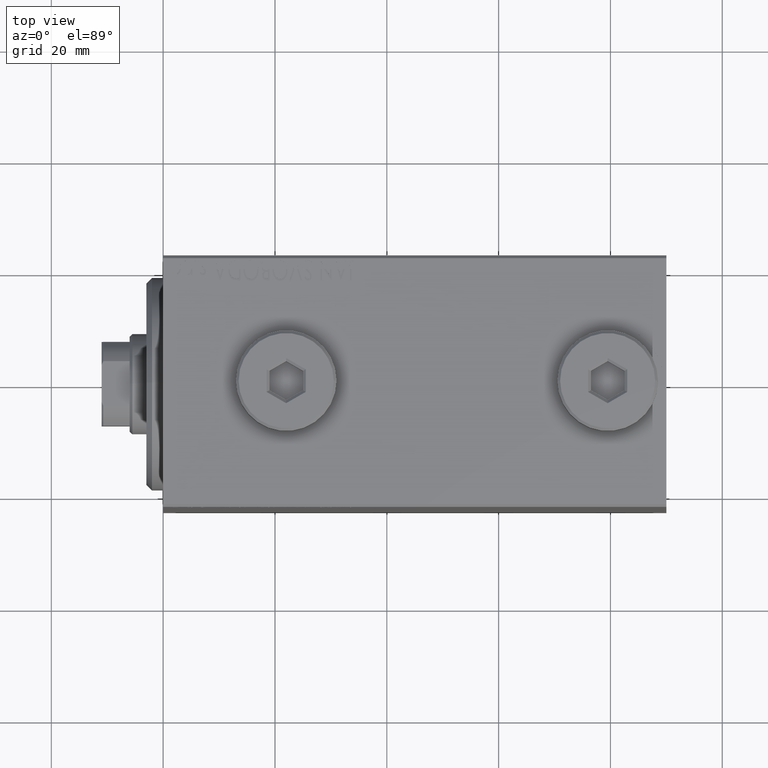
[diagram: clean part render]
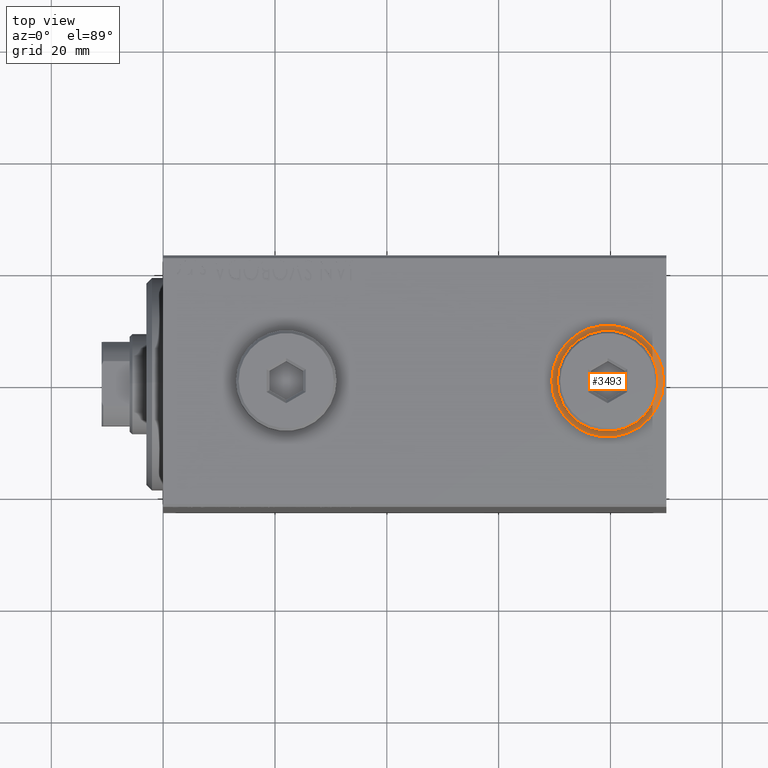
[diagram: same view with one face highlighted and labeled with its STEP entity id]
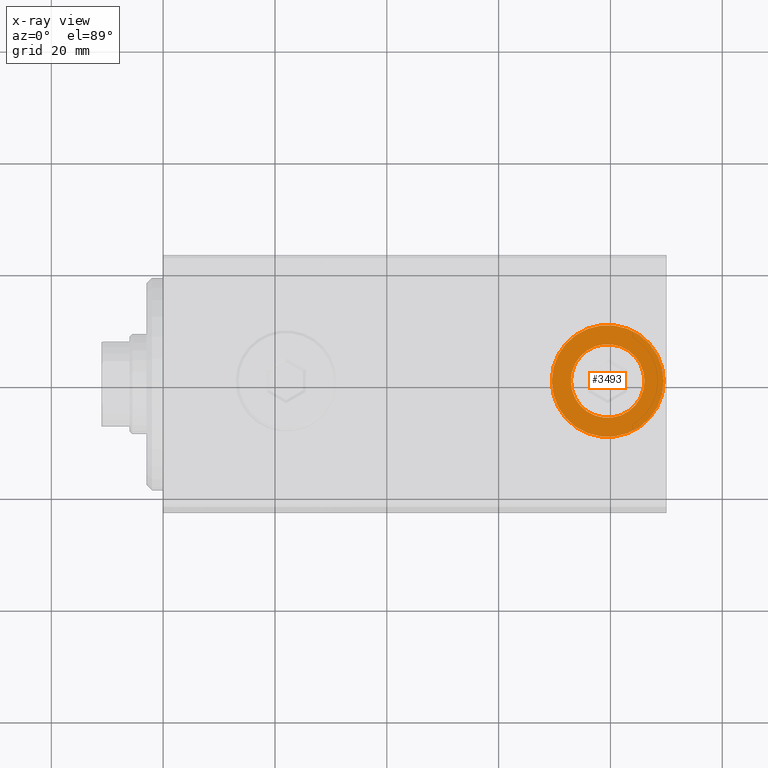
[diagram: x-ray of the same camera — body ghosted, the highlighted face saturated]
A machine part, top view. The second image highlights one B-rep face of the part: STEP entity #3493.
The next image is the same camera in x-ray: the body ghosted, the highlighted face saturated — about 0% of this face is hidden behind the body in this view.
In plain terms, the highlighted planar face has unit normal (0, 0, 1).
Its self-contained STEP definition (entity closure, byte-faithful):
#148 = CARTESIAN_POINT ( 'NONE',  ( 72.92000000000001592, -4.205605781205150780E-15, 32.39999999999998437 ) ) ;
#1660 = DIRECTION ( 'NONE',  ( 1.000000000000000000, 0.000000000000000000, 0.000000000000000000 ) ) ;
#1868 = DIRECTION ( 'NONE',  ( 1.000000000000000000, 0.000000000000000000, 0.000000000000000000 ) ) ;
#2141 = EDGE_LOOP ( 'NONE', ( #22167, #30426 ) ) ;
#3099 = AXIS2_PLACEMENT_3D ( 'NONE', #13553, #45111, #30378 ) ;
#3493 = ADVANCED_FACE ( 'NONE', ( #13364, #10136 ), #41478, .T. ) ;
#5326 = DIRECTION ( 'NONE',  ( 0.000000000000000000, 0.000000000000000000, 1.000000000000000000 ) ) ;
#5958 = CARTESIAN_POINT ( 'NONE',  ( 86.08000000000001251, -5.011423375044109033E-15, 32.39999999999998437 ) ) ;
#6529 = VERTEX_POINT ( 'NONE', #32915 ) ;
#8081 = AXIS2_PLACEMENT_3D ( 'NONE', #45329, #10313, #24370 ) ;
#9737 = CARTESIAN_POINT ( 'NONE',  ( 79.50000000000001421, -5.011423375044109033E-15, 32.39999999999998437 ) ) ;
#9910 = CARTESIAN_POINT ( 'NONE',  ( 79.50000000000001421, -5.011423375044109033E-15, 32.39999999999998437 ) ) ;
#10136 = FACE_OUTER_BOUND ( 'NONE', #2141, .T. ) ;
#10313 = DIRECTION ( 'NONE',  ( 0.000000000000000000, 0.000000000000000000, 1.000000000000000000 ) ) ;
#10331 = CIRCLE ( 'NONE', #8081, 6.580000000000002736 ) ;
#10513 = AXIS2_PLACEMENT_3D ( 'NONE', #36918, #5326, #1868 ) ;
#13364 = FACE_BOUND ( 'NONE', #41203, .T. ) ;
#13553 = CARTESIAN_POINT ( 'NONE',  ( 79.50000000000001421, -5.011423375044109033E-15, 32.39999999999998437 ) ) ;
#15954 = EDGE_CURVE ( 'NONE', #23478, #33916, #10331, .T. ) ;
#16274 = ORIENTED_EDGE ( 'NONE', *, *, #15954, .F. ) ;
#17068 = DIRECTION ( 'NONE',  ( 0.000000000000000000, 0.000000000000000000, 1.000000000000000000 ) ) ;
#17860 = CIRCLE ( 'NONE', #3099, 6.580000000000002736 ) ;
#18087 = VERTEX_POINT ( 'NONE', #20580 ) ;
#20580 = CARTESIAN_POINT ( 'NONE',  ( 69.50000000000001421, -3.786776575896756763E-15, 32.39999999999998437 ) ) ;
#21582 = CIRCLE ( 'NONE', #10513, 9.999999999999994671 ) ;
#22167 = ORIENTED_EDGE ( 'NONE', *, *, #33453, .T. ) ;
#23478 = VERTEX_POINT ( 'NONE', #148 ) ;
#23803 = DIRECTION ( 'NONE',  ( 0.000000000000000000, 0.000000000000000000, 1.000000000000000000 ) ) ;
#24370 = DIRECTION ( 'NONE',  ( 1.000000000000000000, 0.000000000000000000, 0.000000000000000000 ) ) ;
#25929 = ORIENTED_EDGE ( 'NONE', *, *, #31803, .F. ) ;
#26137 = EDGE_CURVE ( 'NONE', #18087, #6529, #36373, .T. ) ;
#29735 = AXIS2_PLACEMENT_3D ( 'NONE', #9737, #23803, #1660 ) ;
#30378 = DIRECTION ( 'NONE',  ( 1.000000000000000000, 0.000000000000000000, 0.000000000000000000 ) ) ;
#30426 = ORIENTED_EDGE ( 'NONE', *, *, #26137, .T. ) ;
#31106 = DIRECTION ( 'NONE',  ( 1.000000000000000000, 0.000000000000000000, -0.000000000000000000 ) ) ;
#31803 = EDGE_CURVE ( 'NONE', #33916, #23478, #17860, .T. ) ;
#32915 = CARTESIAN_POINT ( 'NONE',  ( 89.50000000000001421, -5.011423375044109033E-15, 32.39999999999998437 ) ) ;
#33453 = EDGE_CURVE ( 'NONE', #6529, #18087, #21582, .T. ) ;
#33916 = VERTEX_POINT ( 'NONE', #5958 ) ;
#36373 = CIRCLE ( 'NONE', #29735, 9.999999999999994671 ) ;
#36918 = CARTESIAN_POINT ( 'NONE',  ( 79.50000000000001421, -5.011423375044109033E-15, 32.39999999999998437 ) ) ;
#41203 = EDGE_LOOP ( 'NONE', ( #25929, #16274 ) ) ;
#41478 = PLANE ( 'NONE',  #42467 ) ;
#42467 = AXIS2_PLACEMENT_3D ( 'NONE', #9910, #17068, #31106 ) ;
#45111 = DIRECTION ( 'NONE',  ( 0.000000000000000000, 0.000000000000000000, 1.000000000000000000 ) ) ;
#45329 = CARTESIAN_POINT ( 'NONE',  ( 79.50000000000001421, -5.011423375044109033E-15, 32.39999999999998437 ) ) ;